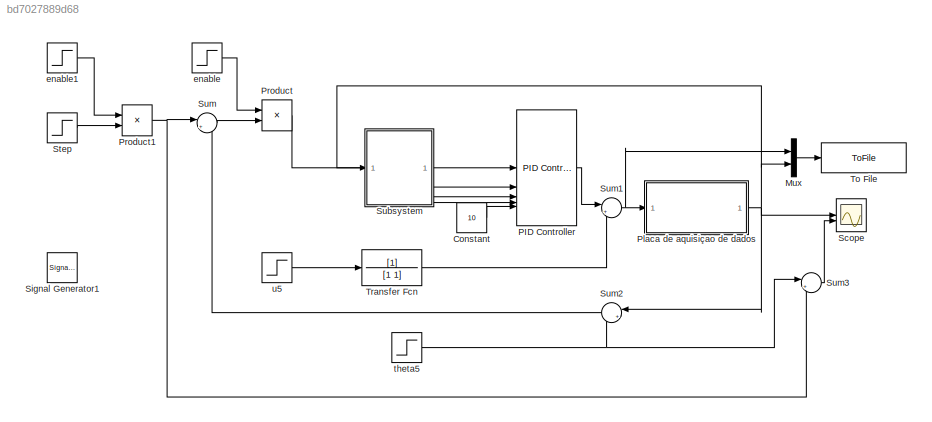
MODEL slx_bd7027889d68
KIND model
CONFIG AbsTol = auto
CONFIG EnableMultiTasking = off
CONFIG FixedStep = 0.001
CONFIG MaxStep = auto
CONFIG MinStep = auto
CONFIG RelTol = 1e-3
CONFIG SampleTimeConstraint = Unconstrained
CONFIG SolverName = ode4
CONFIG StartTime = 0.0
CONFIG StopTime = 50
BLOCK [Constant] Constant
  Value = 10
BLOCK [Mux] Mux
  DisplayOption = bar
  Inputs = 2
BLOCK [Reference] PID Controller  REF=slpidlib/PID Controller
  LibrarySourceBlock = simulink/Continuous/PID Controller
  SourceBlock = slpidlib/PID Controller
  SourceType = PID 1dof
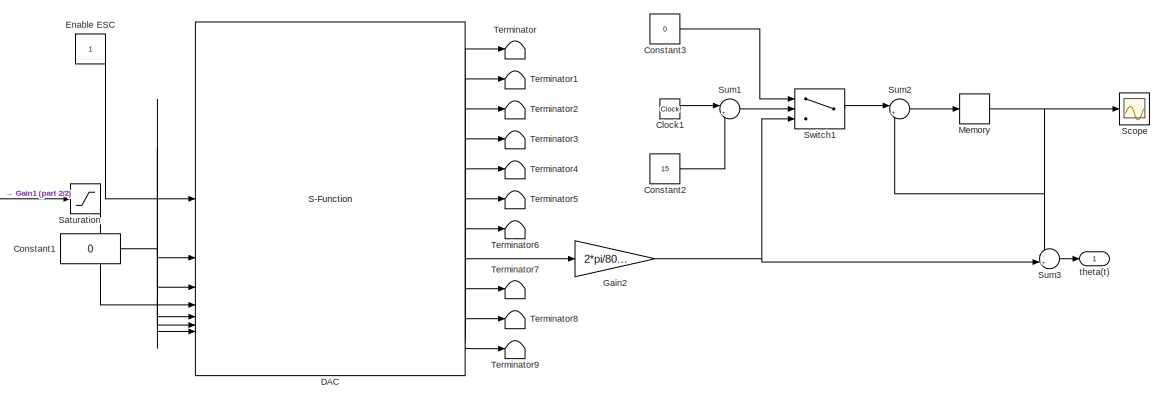
[diagram: Placa de aquisiçao de dados - part 1/2, right side, full height]
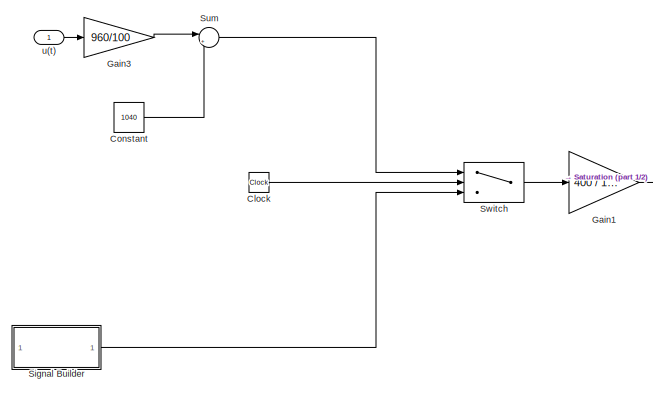
[diagram: Placa de aquisiçao de dados - part 2/2, left side, full height]
BLOCK [SubSystem] Placa de aquisiçao de dados
BLOCK [Clock] Placa de aquisiçao de dados/Clock
BLOCK [Clock] Placa de aquisiçao de dados/Clock1
BLOCK [Constant] Placa de aquisiçao de dados/Constant
  Value = 1040
BLOCK [Constant] Placa de aquisiçao de dados/Constant1
  Value = 0
BLOCK [Constant] Placa de aquisiçao de dados/Constant2
  Value = 15
BLOCK [Constant] Placa de aquisiçao de dados/Constant3
  Value = 0
BLOCK [S-Function] Placa de aquisiçao de dados/DAC
  EnableBusSupport = off
  FunctionName = dacSfunction
  Parameters = serialPort,sampleTime,gpioOutCh1FinalState,gpioOutCh2FinalState,gpioOutCh3FinalState,pwmFrequency,pwmCh1FinalDuty,pwmCh2FinalDuty,pwmCh3FinalDuty,pwmCh4FinalDuty,enc1Mode,enc1ResetCount,enc1Direction,enc1Quadrature,enc1Filter,enc2Mode,enc2ResetCount,enc2Direction,enc2Quadrature,enc2Filter,enc3Mode,enc3ResetCount,enc3Direction,enc3Quadrature,enc3Filter
  SFcnIsStateOwnerBlock = off
  SFunctionDeploymentMode = off
BLOCK [Constant] Placa de aquisiçao de dados/Enable ESC
BLOCK [Gain] Placa de aquisiçao de dados/Gain1
  Gain = 400 / 1e6
BLOCK [Gain] Placa de aquisiçao de dados/Gain2
  Gain = 2*pi/8000
BLOCK [Gain] Placa de aquisiçao de dados/Gain3
  Gain = 960/100
BLOCK [Memory] Placa de aquisiçao de dados/Memory
BLOCK [Saturate] Placa de aquisiçao de dados/Saturation
  LowerLimit = 0
  UpperLimit = 0.8
BLOCK [Scope] Placa de aquisiçao de dados/Scope
  Floating = off
  NumInputPorts = 1
  ScopeSpecificationString = Simulink.scopes.TimeScopeBlockCfg('CurrentConfiguration', extmgr.ConfigurationSet(extmgr.Configuration('Core','General UI',true),extmgr.Configuration('Core','Source UI',true),extmgr.Configuration('Sources','WiredSimulink',true),extmgr.Configuration('Visuals','Time Domain',true),extmgr.Configuration('Tools','Plot Navigation',true),extmgr.Configuration('Tools','Measurements',true)),'Version','2023b'...<+1ch>
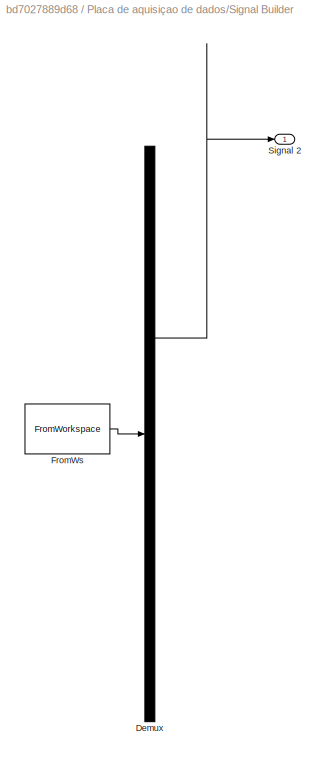
BLOCK [SubSystem] Placa de aquisiçao de dados/Signal Builder
  ClipboardFcn = sigbuilder_block('clipboard');
  CloseFcn = sigbuilder_block('close');
  ContinueFcn = sigbuilder_block('continue');
  CopyFcn = sigbuilder_block('copy');
  DeleteFcn = sigbuilder_block('delete');
  LoadFcn = sigbuilder_block('load');
  MaskHideContents = on
  ModelCloseFcn = sigbuilder_block('modelClose');
  NameChangeFcn = sigbuilder_block('namechange');
  OpenFcn = sigbuilder_block('open',[0 33 1440 687.75 ]);
  PauseFcn = sigbuilder_block('pause');
  PreSaveFcn = sigbuilder_block('preSave');
  StartFcn = sigbuilder_block('start');
  StopFcn = sigbuilder_block('stop');
  Tag = STV Subsys
BLOCK [Demux] Placa de aquisiçao de dados/Signal Builder/Demux
  DisplayOption = none
  Outputs = 1
  Tag = STV Demux
BLOCK [FromWorkspace] Placa de aquisiçao de dados/Signal Builder/FromWs
  Tag = STV FromWs
  VariableName = tuvar
BLOCK [Outport] Placa de aquisiçao de dados/Signal Builder/Signal 2
  Tag = STV Outport
BLOCK [Sum] Placa de aquisiçao de dados/Sum
  Inputs = |++
BLOCK [Sum] Placa de aquisiçao de dados/Sum1
  Inputs = |+-
BLOCK [Sum] Placa de aquisiçao de dados/Sum2
  Inputs = |++
BLOCK [Sum] Placa de aquisiçao de dados/Sum3
  Inputs = -+|
BLOCK [Switch] Placa de aquisiçao de dados/Switch
  InputSameDT = off
  SaturateOnIntegerOverflow = off
  Threshold = 15
BLOCK [Switch] Placa de aquisiçao de dados/Switch1
  Criteria = u2 ~= 0
  InputSameDT = off
  SaturateOnIntegerOverflow = off
BLOCK [Terminator] Placa de aquisiçao de dados/Terminator
BLOCK [Terminator] Placa de aquisiçao de dados/Terminator1
BLOCK [Terminator] Placa de aquisiçao de dados/Terminator2
BLOCK [Terminator] Placa de aquisiçao de dados/Terminator3
BLOCK [Terminator] Placa de aquisiçao de dados/Terminator4
BLOCK [Terminator] Placa de aquisiçao de dados/Terminator5
BLOCK [Terminator] Placa de aquisiçao de dados/Terminator6
BLOCK [Terminator] Placa de aquisiçao de dados/Terminator7
BLOCK [Terminator] Placa de aquisiçao de dados/Terminator8
BLOCK [Terminator] Placa de aquisiçao de dados/Terminator9
BLOCK [Outport] Placa de aquisiçao de dados/theta(t)
BLOCK [Inport] Placa de aquisiçao de dados/u(t)
BLOCK [Product] Product
BLOCK [Product] Product1
BLOCK [Scope] Scope
  Floating = off
  NumInputPorts = 2
  ScopeSpecificationString = Simulink.scopes.TimeScopeBlockCfg('CurrentConfiguration', extmgr.ConfigurationSet(extmgr.Configuration('Core','General UI',true),extmgr.Configuration('Core','Source UI',true),extmgr.Configuration('Sources','WiredSimulink',true,'DataLoggingVariableName','ScopeData1'),extmgr.Configuration('Visuals','Time Domain',true,'SerializedDisplays',{struct('MinYLimReal','-0.11261','MaxYLimReal','1.0056','YLabe...<+1551ch>
BLOCK [SignalGenerator] Signal Generator1
  Amplitude = deg2rad(10)
  Frequency = 0.4
  Units = rad/sec
  WaveForm = square
BLOCK [Step] Step
  After = deg2rad(42)
  SampleTime = 0
  Time = 23
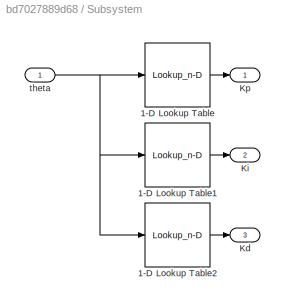
BLOCK [SubSystem] Subsystem
BLOCK [Lookup_n-D] Subsystem/1-D Lookup Table
  BreakpointsForDimension1 = [0.114;0.3862;0.6568;0.9247]
  InputPortMap = u0
  InternalRulePriority = Speed
  NumberOfTableDimensions = 1
  RndMeth = Simplest
  Table = [-3.4242;-4.0295;-2.3476;2.6465]
BLOCK [Lookup_n-D] Subsystem/1-D Lookup Table1
  BreakpointsForDimension1 = [0.114;0.3862;0.6568;0.9247]
  InputPortMap = u0
  InternalRulePriority = Speed
  NumberOfTableDimensions = 1
  RndMeth = Simplest
  Table = [46.3166;62.1752;69.7699;81.9909]
BLOCK [Lookup_n-D] Subsystem/1-D Lookup Table2
  BreakpointsForDimension1 = [0.114;0.3862;0.6568;0.9247]
  InputPortMap = u0
  InternalRulePriority = Speed
  NumberOfTableDimensions = 1
  RndMeth = Simplest
  Table = [1.6110;2.4421;3.2407;4.9246]
BLOCK [Outport] Subsystem/Kd
  Port = 3
BLOCK [Outport] Subsystem/Ki
  Port = 2
BLOCK [Outport] Subsystem/Kp
BLOCK [Inport] Subsystem/theta
BLOCK [Sum] Sum
  Inputs = |+-
BLOCK [Sum] Sum1
  Inputs = |++
BLOCK [Sum] Sum2
  Inputs = |+-
  NameLocation = top
BLOCK [Sum] Sum3
  Inputs = |++
BLOCK [ToFile] To File
  Decimation = 3
  Filename = testeDegPIDNormal.mat
BLOCK [TransferFcn] Transfer Fcn
  Denominator = [1 1]
BLOCK [Step] enable
  SampleTime = 0
  Time = 23
BLOCK [Step] enable1
  SampleTime = 0
  Time = 0
BLOCK [Step] theta5
  After = 0
  SampleTime = 0
  Time = 16
BLOCK [Step] u5
  After = 0
  SampleTime = 0
  Time = 16
LINE Constant:1 -> PID Controller:5
LINE Mux:1 -> To File:1
LINE PID Controller:1 -> Sum1:1
LINE Placa de aquisiçao de dados/Clock1:1 -> Placa de aquisiçao de dados/Sum1:1
LINE Placa de aquisiçao de dados/Clock:1 -> Placa de aquisiçao de dados/Switch:2
NET Placa de aquisiçao de dados/Constant1:1 -> Placa de aquisiçao de dados/DAC:2, Placa de aquisiçao de dados/DAC:3, Placa de aquisiçao de dados/DAC:5, Placa de aquisiçao de dados/DAC:6, Placa de aquisiçao de dados/DAC:7
LINE Placa de aquisiçao de dados/Constant2:1 -> Placa de aquisiçao de dados/Sum1:2
LINE Placa de aquisiçao de dados/Constant3:1 -> Placa de aquisiçao de dados/Switch1:1
LINE Placa de aquisiçao de dados/Constant:1 -> Placa de aquisiçao de dados/Sum:2
LINE Placa de aquisiçao de dados/DAC:1 -> Placa de aquisiçao de dados/Terminator:1
LINE Placa de aquisiçao de dados/DAC:10 -> Placa de aquisiçao de dados/Terminator8:1
LINE Placa de aquisiçao de dados/DAC:11 -> Placa de aquisiçao de dados/Terminator9:1
LINE Placa de aquisiçao de dados/DAC:2 -> Placa de aquisiçao de dados/Terminator1:1
LINE Placa de aquisiçao de dados/DAC:3 -> Placa de aquisiçao de dados/Terminator2:1
LINE Placa de aquisiçao de dados/DAC:4 -> Placa de aquisiçao de dados/Terminator3:1
LINE Placa de aquisiçao de dados/DAC:5 -> Placa de aquisiçao de dados/Terminator4:1
LINE Placa de aquisiçao de dados/DAC:6 -> Placa de aquisiçao de dados/Terminator5:1
LINE Placa de aquisiçao de dados/DAC:7 -> Placa de aquisiçao de dados/Terminator6:1
LINE Placa de aquisiçao de dados/DAC:8 -> Placa de aquisiçao de dados/Gain2:1
LINE Placa de aquisiçao de dados/DAC:9 -> Placa de aquisiçao de dados/Terminator7:1
LINE Placa de aquisiçao de dados/Enable ESC:1 -> Placa de aquisiçao de dados/DAC:1
LINE Placa de aquisiçao de dados/Gain1:1 -> Placa de aquisiçao de dados/Saturation:1
NET Placa de aquisiçao de dados/Gain2:1 -> Placa de aquisiçao de dados/Sum3:2, Placa de aquisiçao de dados/Switch1:3
LINE Placa de aquisiçao de dados/Gain3:1 -> Placa de aquisiçao de dados/Sum:1
NET Placa de aquisiçao de dados/Memory:1 -> Placa de aquisiçao de dados/Scope:1, Placa de aquisiçao de dados/Sum2:2, Placa de aquisiçao de dados/Sum3:1
LINE Placa de aquisiçao de dados/Saturation:1 -> Placa de aquisiçao de dados/DAC:4
LINE Placa de aquisiçao de dados/Signal Builder:1 -> Placa de aquisiçao de dados/Switch:3
LINE Placa de aquisiçao de dados/Sum1:1 -> Placa de aquisiçao de dados/Switch1:2
LINE Placa de aquisiçao de dados/Sum2:1 -> Placa de aquisiçao de dados/Memory:1
LINE Placa de aquisiçao de dados/Sum3:1 -> Placa de aquisiçao de dados/theta(t):1
LINE Placa de aquisiçao de dados/Sum:1 -> Placa de aquisiçao de dados/Switch:1
LINE Placa de aquisiçao de dados/Switch1:1 -> Placa de aquisiçao de dados/Sum2:1
LINE Placa de aquisiçao de dados/Switch:1 -> Placa de aquisiçao de dados/Gain1:1
LINE Placa de aquisiçao de dados/u(t):1 -> Placa de aquisiçao de dados/Gain3:1
NET Placa de aquisiçao de dados:1 -> Mux:2, Scope:1, Subsystem:1, Sum2:1
NET Product1:1 -> Sum3:2, Sum:1
LINE Product:1 -> PID Controller:1
LINE Step:1 -> Product1:2
LINE Subsystem/1-D Lookup Table1:1 -> Subsystem/Ki:1
LINE Subsystem/1-D Lookup Table2:1 -> Subsystem/Kd:1
LINE Subsystem/1-D Lookup Table:1 -> Subsystem/Kp:1
NET Subsystem/theta:1 -> Subsystem/1-D Lookup Table1:1, Subsystem/1-D Lookup Table2:1, Subsystem/1-D Lookup Table:1
LINE Subsystem:1 -> PID Controller:2
LINE Subsystem:2 -> PID Controller:3
LINE Subsystem:3 -> PID Controller:4
NET Sum1:1 -> Mux:1, Placa de aquisiçao de dados:1
LINE Sum2:1 -> Sum:2
LINE Sum3:1 -> Scope:2
LINE Sum:1 -> Product:2
LINE Transfer Fcn:1 -> Sum1:2
LINE enable1:1 -> Product1:1
LINE enable:1 -> Product:1
NET theta5:1 -> Sum2:2, Sum3:1
LINE u5:1 -> Transfer Fcn:1
note: NET lines group one-source signal fan-out (src -> all destinations, sorted); 1:1 wires keep LINE
